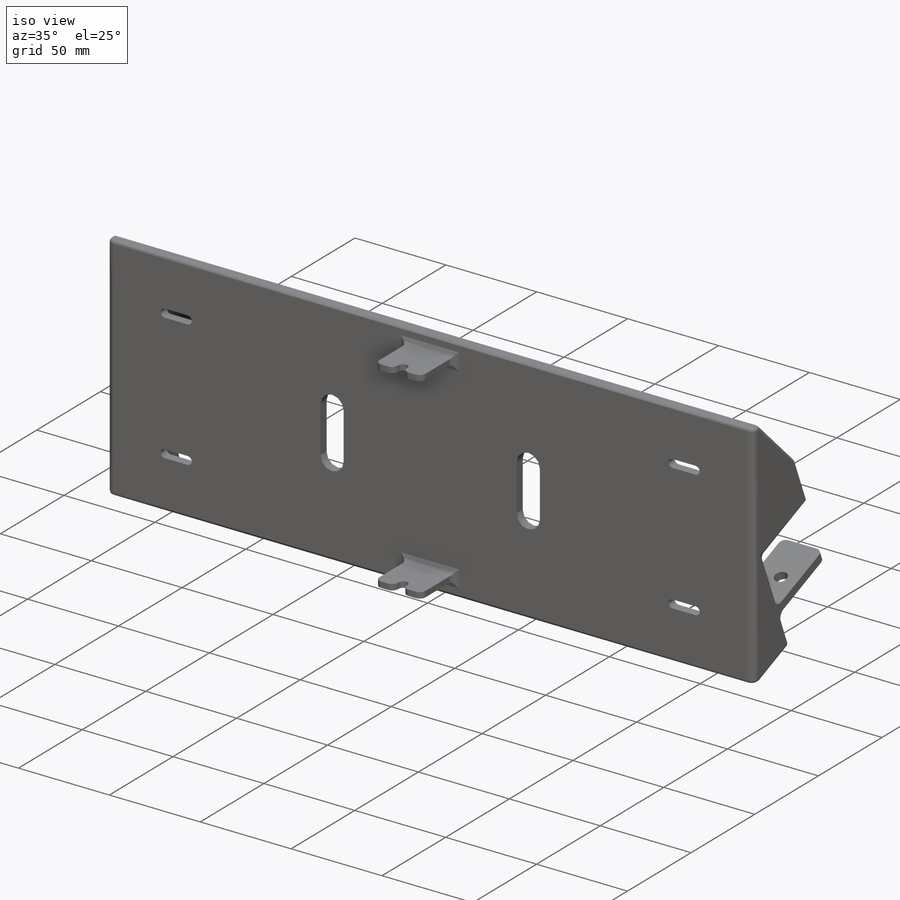
[diagram: iso view]
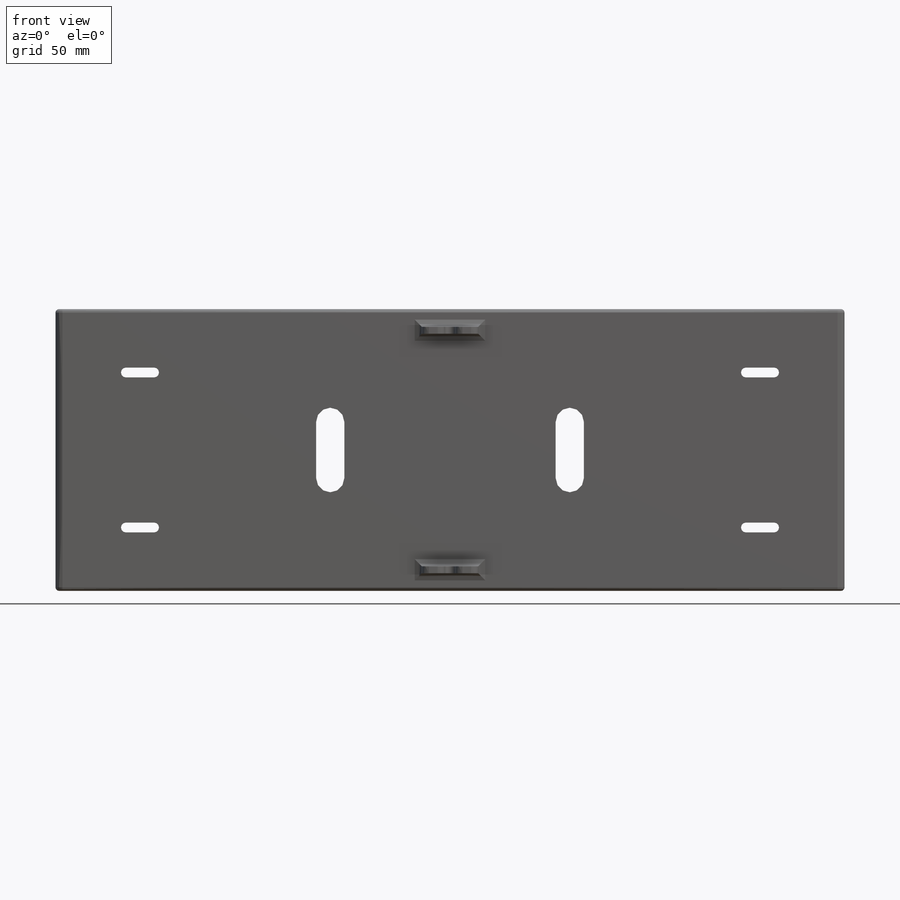
[diagram: front view]
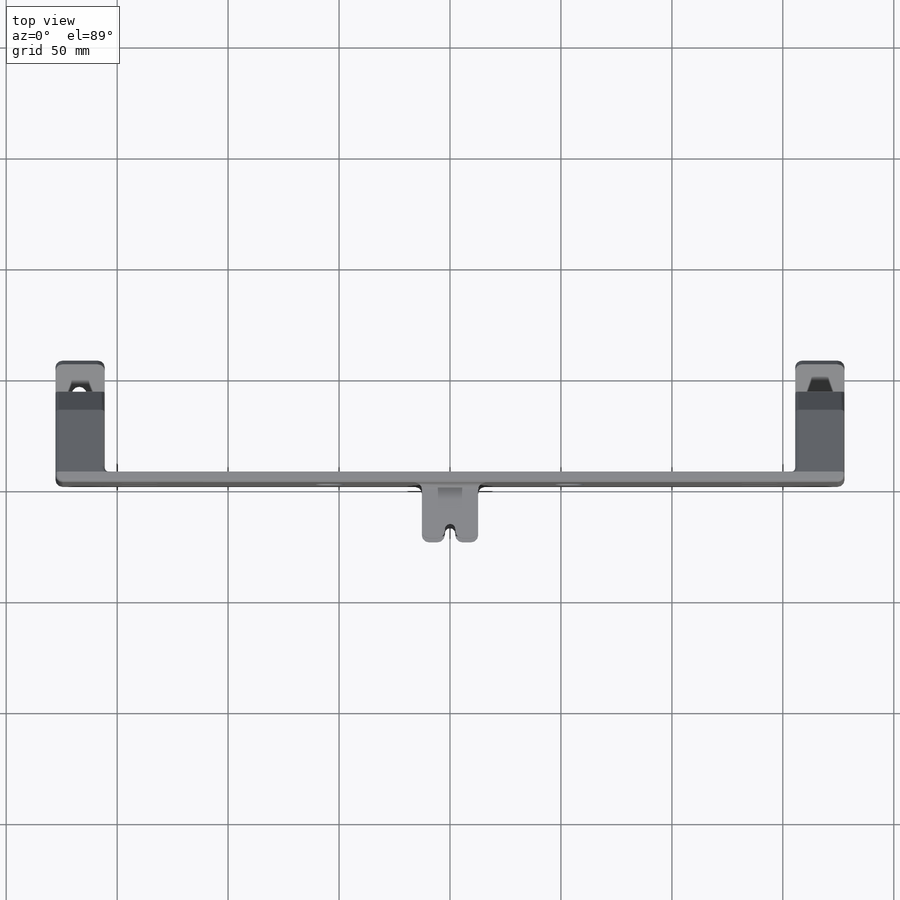
[diagram: top view]
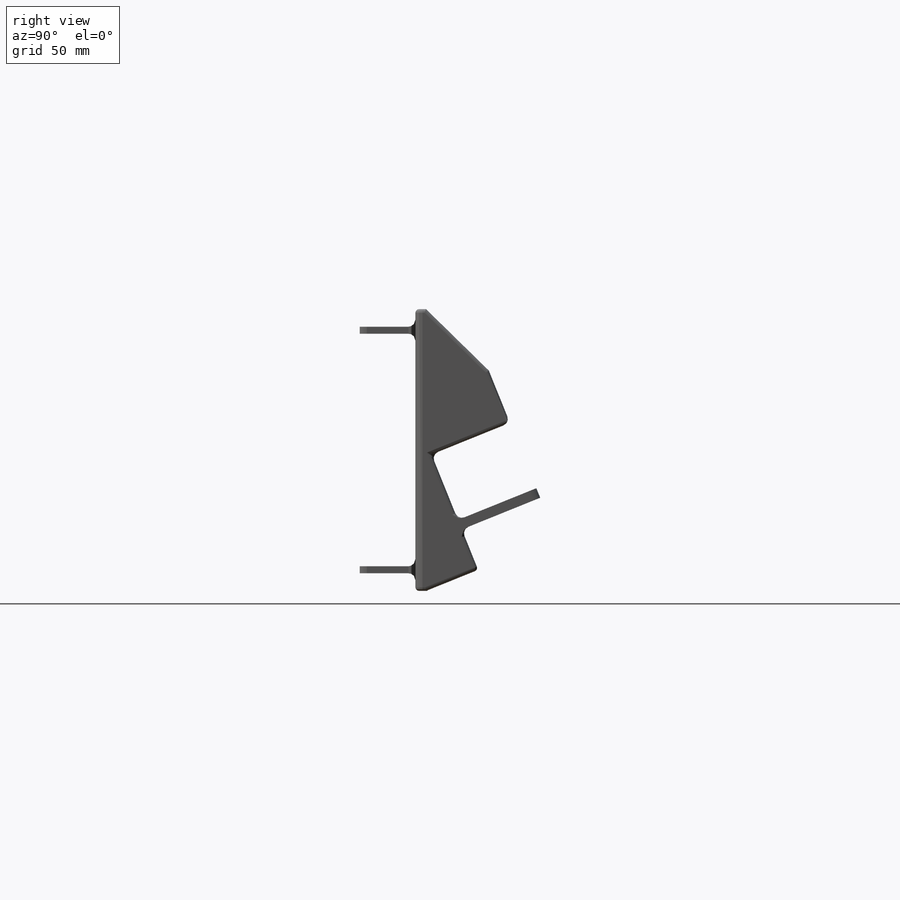
[diagram: right view]
SOLIDWORKS PART (.sldprt)
format: sldprt  version: not decoded by parser v0  size: 1,163,264 bytes
history: native  units: mm
features: sketch x22, fillet x18, extrude x7, cut_extrude x7, hole x4, pattern_linear x3, material x1, mirror x1, plane x1, move_body x1 (+13 scaffold rows collapsed)
feature tree (78):
  scaffold x13  (default folders/planes/origin — collapsed)
  material  "6061-T6 (SS)"
  sketch  "Sketch1"  dims[D1=152.4mm D2=304.8mm D3=63.5mm D4=127.0mm]
  extrude  "Boss-Extrude1"  Depth=4.7625mm
  sketch  "Sketch2"  dims[D1=3.175mm D2=25.4mm D3=12.7mm D4=53.975mm]
  extrude  "Boss-Extrude2"  Depth=25.0825mm
  sketch  "Sketch3"  dims[D2=~2.38125mm D1=~3.96875mm D3=~3.96875mm D4=~3.96875mm]
  cut_extrude  "Cut-Extrude1"  Depth=127mm
  fillet  "Fillet1"  Radius=3.175mm
  sketch  "Sketch4"  dims[D1=12.7mm D2=38.1mm D3=19.05mm D4=53.975mm]
  cut_extrude  "Cut-Extrude2"  [1 undecoded]
  hole  "#8-32 Tapped Hole1"  Diameter=3.4544mm Depth=3.175mm
  sketch  "Sketch5"  dims[D1=12.7mm D2=28.575mm]
  sketch  "Sketch6"  dims[hole-wizard template sketch: 60 standard entries collapsed; hole parameters kept: c18.Thru Tap Drill Depth=3.175mm]
  pattern_linear  "LPattern1"  Count1=2 Count2=2 Spacing1=279.4mm Spacing2=69.85mm
  fillet  "Fillet2"  Radius=6.35mm
  fillet  "Fillet3"  Radius=6.35mm
  fillet  "Fillet4"  Radius=3.175mm
  sketch  "Sketch7"  dims[c1.D1=12.7mm c1.D2=12.7mm c1.D3=12.7mm c1.D4=28.575mm c2.D3=139.7mm]
  cut_extrude  "Cut-Extrude3"  [1 undecoded]
  pattern_linear  "LPattern2"  Count1=2 Count2=2 Spacing1=279.4mm Spacing2=69.85mm
  sketch  "Sketch8"  dims[D1=25.4mm D2=25.4mm]
  extrude  "Boss-Extrude3"  [1 undecoded]
  sketch  "Sketch9"  dims[c1.D1=~98.124798mm c2.D1=20.15deg c3.D1=~114.580807mm c4.D1=22.0deg]
  extrude  "Boss-Extrude4"  Depth=22.225mm
  sketch  "Sketch11"  dims[D1=~19.644487mm D2=22.225mm]
  cut_extrude  "Cut-Extrude5"  [1 undecoded]
  sketch  "Sketch12"  dims[D1=31.7881mm D2=22.225mm D3=4.6355mm]
  cut_extrude  "Cut-Extrude6"  [1 undecoded]
  sketch  "Sketch21"  dims[D1=15.875mm D2=25.4mm]
  extrude  "Boss-Extrude8"  [1 undecoded]
  fillet  "Fillet9"  [1 undecoded]
  fillet  "Fillet8"  Radius=3.175mm
  mirror  "Mirror1"
  extrude  "Boss-Extrude9"  [1 undecoded]
  sketch  "Sketch22"  dims[D1=1.5875mm]
  hole  "13/64 (0.20313) Diameter Hole1"  Diameter=5.159502mm Depth=11.4808mm
  sketch  "Sketch23"  dims[D1=~9.14461mm D2=~21.429802mm]
  sketch  "Sketch24"  dims[hole-wizard template sketch: 46 standard entries collapsed; hole parameters kept: c15.Hole Dia.=~5.159502mm c15.Hole Depth=11.4808mm c15.D3=~14.816244mm c15.Drill Angle=118.0deg]
  sketch  "Sketch10"  dims[D1=6.604mm D2=~9.14461mm D3=~21.429802mm]
  cut_extrude  "Cut-Extrude4"  [1 undecoded]
  sketch  "Sketch17"  dims[c1.D2=6.604mm c1.D1=~11.822405mm c1.D3=~15.412593mm c2.D1=~11.822405mm c2.D3=~14.191742mm c3.D1=~10.692003mm]
  cut_extrude  "Cut-Extrude7"  [1 undecoded]
  hole  "13/64 (0.20313) Diameter Hole2"  Diameter=5.159502mm Depth=11.4808mm
  sketch  "Sketch25"  dims[c1.D1=12.065mm c1.D2=~11.822405mm c2.D1=~15.412593mm c2.D3=~14.191742mm c3.D1=~10.692003mm]
  sketch  "Sketch26"  dims[hole-wizard template sketch: 46 standard entries collapsed; hole parameters kept: c15.Hole Dia.=~5.159502mm c15.Hole Depth=11.4808mm c15.D3=~14.816244mm c15.Drill Angle=118.0deg]
  fillet  "Fillet12"  Radius=1.5875mm
  fillet  "Fillet13"  Radius=1.5875mm
  fillet  "Fillet15"  Radius=1.5875mm
  fillet  "Fillet19"  Radius=3.175mm
  fillet  "Fillet23"  [1 undecoded]
  fillet  "Fillet20"  Radius=3.175mm
  fillet  "Fillet24"  Radius=3.175mm
  plane  "Plane1"  Offset=2.54mm
  move_body  "Body-Move/Copy1"
  sketch  "Sketch27"  dims[D1=107.95mm D2=12.7mm D3=12.7mm D4=22.225mm]
  extrude  "Boss-Extrude10"  Depth=7.9375mm
  hole  "#17 (0.173) Diameter Hole1"  Diameter=4.3942mm Depth=9.4234mm
  sketch  "Sketch29"  dims[D1=28.575mm D2=114.3mm]
  sketch  "Sketch28"  dims[hole-wizard template sketch: 46 standard entries collapsed; hole parameters kept: c15.Hole Dia.=4.3942mm c15.Hole Depth=9.4234mm c15.D3=~14.816244mm c15.Drill Angle=118.0deg]
  pattern_linear  "LPattern3"  Count1=2 Count2=2 Spacing1=228.6mm Spacing2=69.85mm
  fillet  "Fillet25"  Radius=3.175mm
  fillet  "Fillet26"  Radius=3.175mm
  fillet  "Fillet27"  Radius=3.175mm
  fillet  "Fillet28"  Radius=3.175mm
  fillet  "Fillet29"  Radius=3.175mm
decode coverage: 50 of 63 modeling features carry decoded parameters
note: ~ marks probable driven/reference dimensions
note: 11 parameter values undecoded
summary: no parameter record found for 11 features; Diameter pulled from absorbed wizard sketch
note: suppression state not decoded; provenance and decode notes live in map.json
